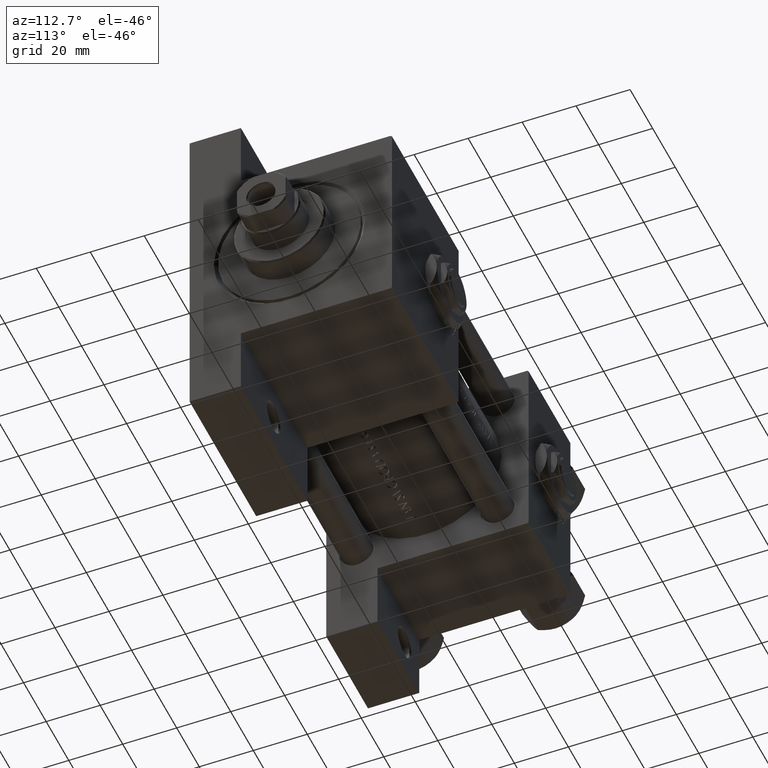
[diagram: clean part render]
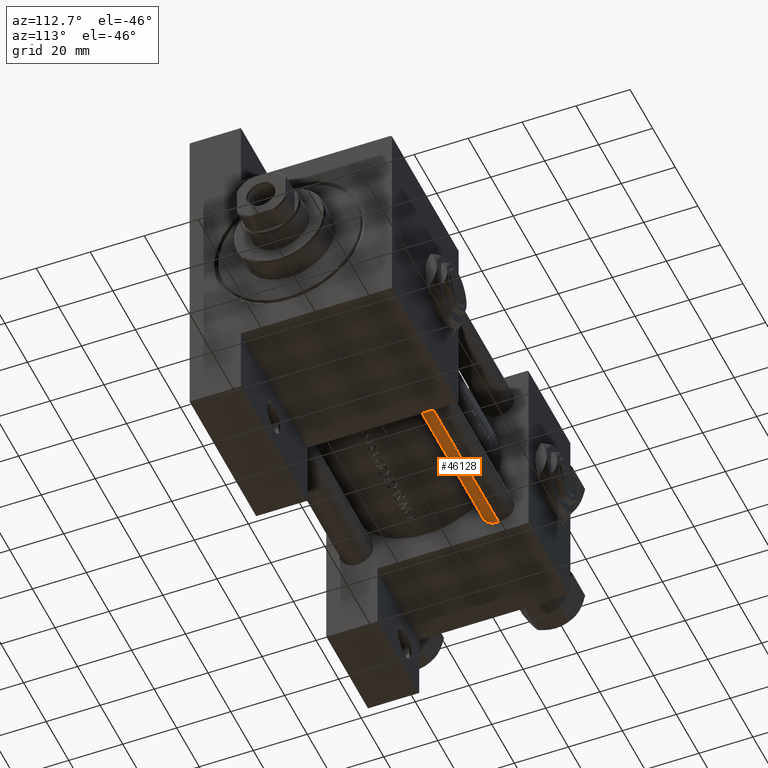
[diagram: same view with one face highlighted and labeled with its STEP entity id]
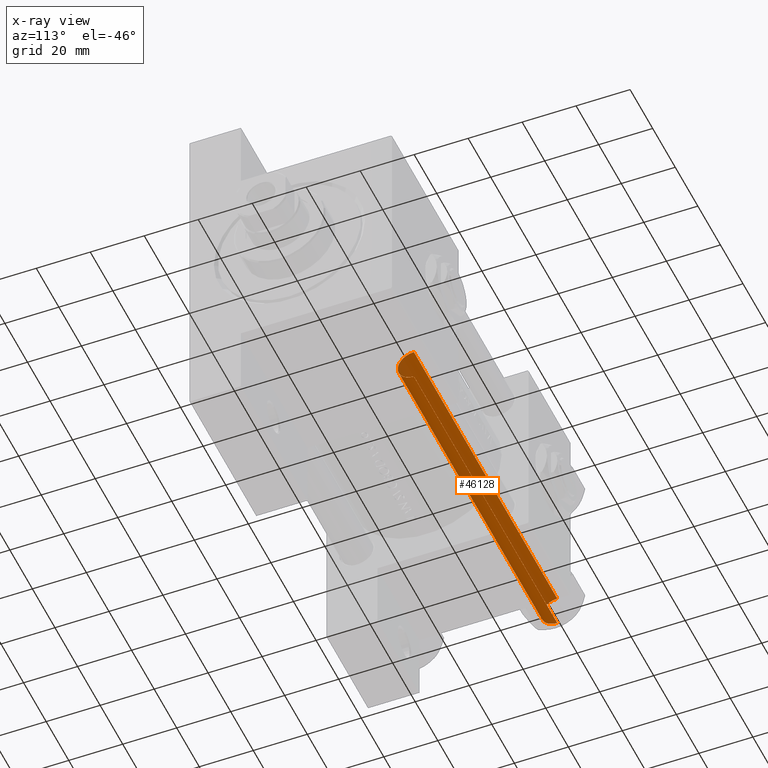
[diagram: x-ray of the same camera — body ghosted, the highlighted face saturated]
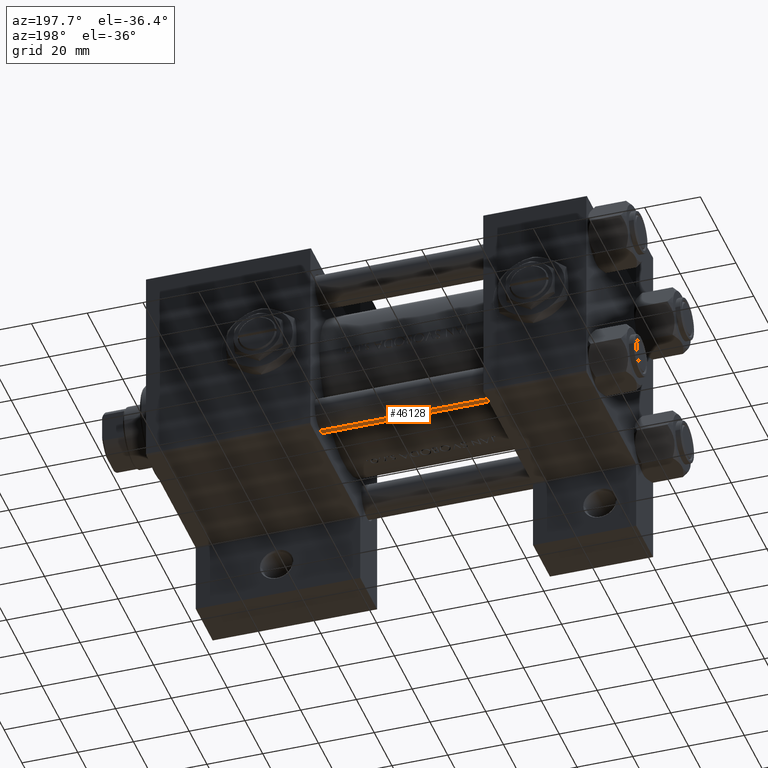
[diagram: same view with one face highlighted and labeled with its STEP entity id]
A machine part, auxiliary view. The second image highlights one B-rep face of the part: STEP entity #46128.
The next image is the same camera in x-ray: the body ghosted, the highlighted face saturated — about 0% of this face is hidden behind the body in this view.
A second angle (auxiliary view) of the same face is appended — the face is thin or edge-on in the first view.
In plain terms, the highlighted cylindrical surface (edge-blend (fillet) strip) has radius 6 mm, axis along (1, -0, -0).
Its self-contained STEP definition (entity closure, byte-faithful):
#362 = LINE ( 'NONE', #22936, #43551 ) ;
#2828 = CARTESIAN_POINT ( 'NONE',  ( 6.000000000000000888, 7.347880794884120722E-16, 127.5000000000000000 ) ) ;
#5174 = ORIENTED_EDGE ( 'NONE', *, *, #10998, .T. ) ;
#6074 = CARTESIAN_POINT ( 'NONE',  ( -6.000000000000000888, 0.000000000000000000, 127.5000000000000000 ) ) ;
#7764 = CIRCLE ( 'NONE', #41022, 6.000000000000000888 ) ;
#10897 = LINE ( 'NONE', #14633, #33045 ) ;
#10998 = EDGE_CURVE ( 'NONE', #46540, #25952, #37924, .T. ) ;
#12200 = CARTESIAN_POINT ( 'NONE',  ( -6.000000000000000888, 0.000000000000000000, 0.5000000000000004441 ) ) ;
#12236 = EDGE_CURVE ( 'NONE', #25952, #18809, #362, .T. ) ;
#13901 = DIRECTION ( 'NONE',  ( -0.000000000000000000, -0.000000000000000000, -1.000000000000000000 ) ) ;
#14633 = CARTESIAN_POINT ( 'NONE',  ( 6.000000000000000888, 7.347880794884120722E-16, 128.0000000000000000 ) ) ;
#15757 = DIRECTION ( 'NONE',  ( -0.000000000000000000, -0.000000000000000000, -1.000000000000000000 ) ) ;
#16581 = EDGE_LOOP ( 'NONE', ( #32879, #5174, #38051, #27842 ) ) ;
#18515 = FACE_OUTER_BOUND ( 'NONE', #16581, .T. ) ;
#18809 = VERTEX_POINT ( 'NONE', #12200 ) ;
#20012 = DIRECTION ( 'NONE',  ( 1.000000000000000000, 0.000000000000000000, 0.000000000000000000 ) ) ;
#20489 = DIRECTION ( 'NONE',  ( 0.000000000000000000, 0.000000000000000000, -1.000000000000000000 ) ) ;
#20830 = AXIS2_PLACEMENT_3D ( 'NONE', #33623, #28936, #37334 ) ;
#22914 = AXIS2_PLACEMENT_3D ( 'NONE', #43509, #20489, #20012 ) ;
#22936 = CARTESIAN_POINT ( 'NONE',  ( -6.000000000000000888, 0.000000000000000000, 128.0000000000000000 ) ) ;
#25952 = VERTEX_POINT ( 'NONE', #6074 ) ;
#26992 = EDGE_CURVE ( 'NONE', #18809, #43566, #7764, .T. ) ;
#27047 = CARTESIAN_POINT ( 'NONE',  ( 6.000000000000000888, 7.347880794884120722E-16, 0.5000000000000004441 ) ) ;
#27842 = ORIENTED_EDGE ( 'NONE', *, *, #26992, .T. ) ;
#28099 = CARTESIAN_POINT ( 'NONE',  ( 0.000000000000000000, 0.000000000000000000, 0.5000000000000004441 ) ) ;
#28354 = EDGE_CURVE ( 'NONE', #46540, #43566, #10897, .T. ) ;
#28936 = DIRECTION ( 'NONE',  ( -0.000000000000000000, -0.000000000000000000, -1.000000000000000000 ) ) ;
#32879 = ORIENTED_EDGE ( 'NONE', *, *, #28354, .F. ) ;
#33045 = VECTOR ( 'NONE', #13901, 1000.000000000000000 ) ;
#33378 = CYLINDRICAL_SURFACE ( 'NONE', #20830, 6.000000000000000888 ) ;
#33623 = CARTESIAN_POINT ( 'NONE',  ( 0.000000000000000000, 0.000000000000000000, 128.0000000000000000 ) ) ;
#35774 = DIRECTION ( 'NONE',  ( -0.000000000000000000, -0.000000000000000000, 1.000000000000000000 ) ) ;
#36264 = DIRECTION ( 'NONE',  ( 1.000000000000000000, 0.000000000000000000, 0.000000000000000000 ) ) ;
#37334 = DIRECTION ( 'NONE',  ( -1.000000000000000000, 0.000000000000000000, 0.000000000000000000 ) ) ;
#37924 = CIRCLE ( 'NONE', #22914, 6.000000000000000888 ) ;
#38051 = ORIENTED_EDGE ( 'NONE', *, *, #12236, .T. ) ;
#41022 = AXIS2_PLACEMENT_3D ( 'NONE', #28099, #35774, #36264 ) ;
#43509 = CARTESIAN_POINT ( 'NONE',  ( 0.000000000000000000, 0.000000000000000000, 127.5000000000000000 ) ) ;
#43551 = VECTOR ( 'NONE', #15757, 1000.000000000000000 ) ;
#43566 = VERTEX_POINT ( 'NONE', #27047 ) ;
#46128 = ADVANCED_FACE ( 'NONE', ( #18515 ), #33378, .T. ) ;
#46540 = VERTEX_POINT ( 'NONE', #2828 ) ;